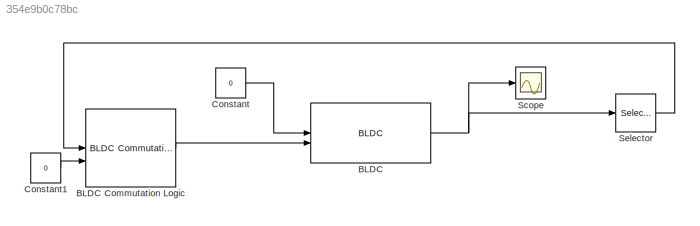
MODEL slx_354e9b0c78bc
KIND model
CONFIG AbsTol = auto
CONFIG EnableMultiTasking = off
CONFIG FixedStep = auto
CONFIG MaxStep = auto
CONFIG MinStep = auto
CONFIG RelTol = 1e-3
CONFIG SampleTimeConstraint = Unconstrained
CONFIG SolverName = VariableStepAuto
CONFIG StartTime = 0.0
CONFIG StopTime = 10.0
BLOCK [Reference] BLDC  REF=autolibbldc/BLDC
  LibrarySourceBlock = mcblib/Electrical Systems/Motors/BLDC
  SourceBlock = autolibbldc/BLDC
  SourceType = BLDC
BLOCK [Reference] BLDC Commutation Logic  REF=eeBldcCommutationLogic/BLDC Commutation Logic
  LibrarySourceBlock = ee_sl_lib/BLDC Control/BLDC Commutation Logic
  SourceBlock = eeBldcCommutationLogic/BLDC Commutation Logic
  SourceType = BLDC Commutation Logic
BLOCK [Constant] Constant
  Value = 0
BLOCK [Constant] Constant1
  Value = 0
BLOCK [Scope] Scope
  Floating = off
  NumInputPorts = 1
  ScopeSpecificationString = Simulink.scopes.TimeScopeBlockCfg('CurrentConfiguration', extmgr.ConfigurationSet(extmgr.Configuration('Core','General UI',true),extmgr.Configuration('Core','Source UI',true),extmgr.Configuration('Sources','WiredSimulink',true),extmgr.Configuration('Visuals','Time Domain',true,'SerializedDisplays',{struct('MinYLimReal','-0.125','MaxYLimReal','1.125','YLabelReal','','MinYLimMag','0.00000','MaxYLimM...<+1976ch>
BLOCK [Selector] Selector
  IndexOptions = Index vector (dialog)
  Indices = [16]
  InputPortWidth = 16
  OutputSizes = 1
LINE BLDC Commutation Logic:1 -> BLDC:2
NET BLDC:1 -> Scope:1, Selector:1
LINE Constant1:1 -> BLDC Commutation Logic:2
LINE Constant:1 -> BLDC:1
LINE Selector:1 -> BLDC Commutation Logic:1
note: NET lines group one-source signal fan-out (src -> all destinations, sorted); 1:1 wires keep LINE
